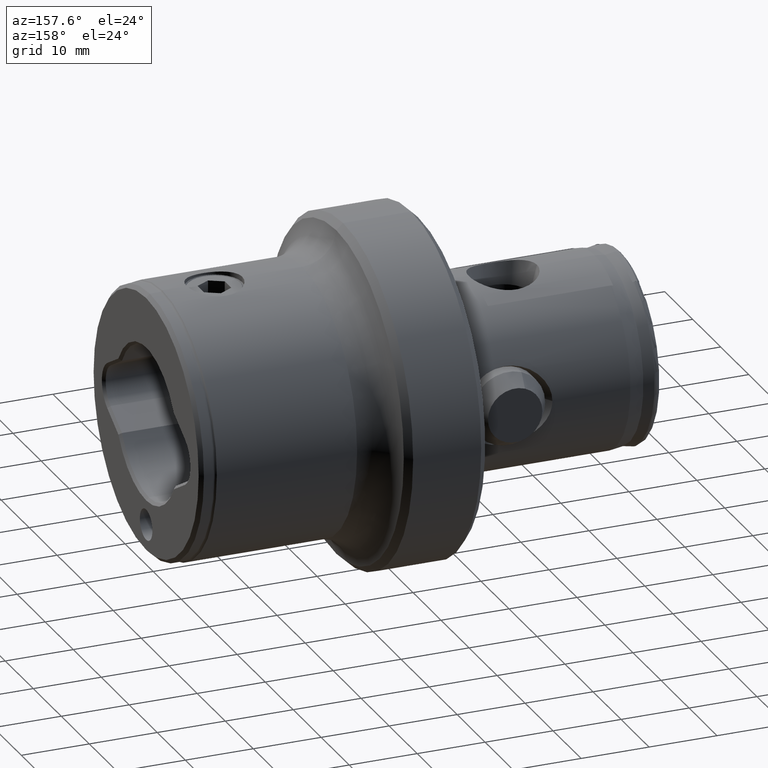
[diagram: clean part render]
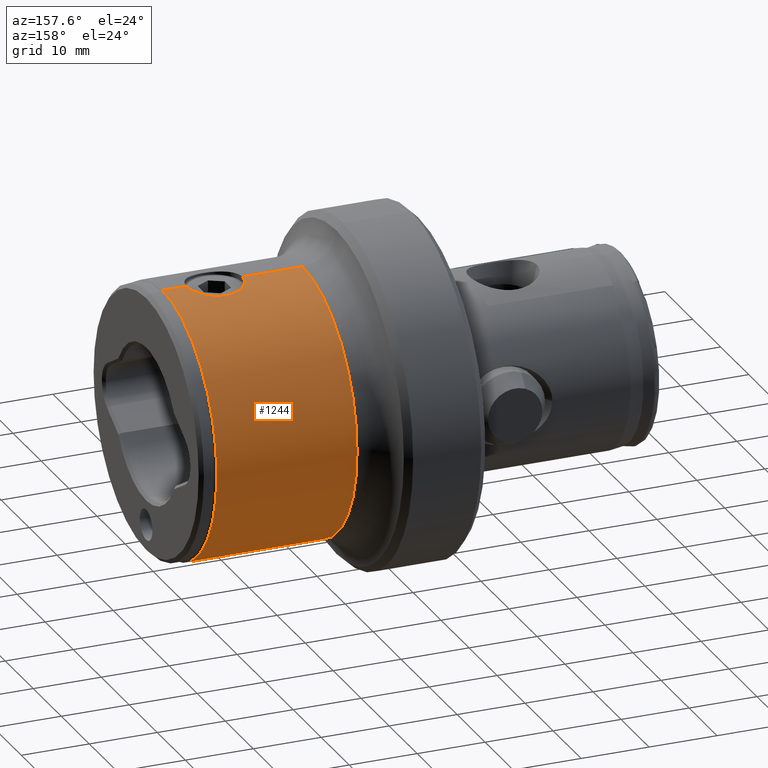
[diagram: same view with one face highlighted and labeled with its STEP entity id]
A machine part, auxiliary view. The second image highlights one B-rep face of the part: STEP entity #1244.
In plain terms, the highlighted cylindrical surface (partial cylindrical patch) has radius 19.5 mm, axis along (-1, -0, -0).
Its self-contained STEP definition (entity closure, byte-faithful):
#48 = CARTESIAN_POINT ( 'NONE',  ( 62.65883272012624900, 3.089202787936411900, 19.25468922842919300 ) ) ;
#89 = CARTESIAN_POINT ( 'NONE',  ( 69.99999999999998600, 0.0000000000000000000, 19.50000000000000000 ) ) ;
#101 = VERTEX_POINT ( 'NONE', #3787 ) ;
#108 = DIRECTION ( 'NONE',  ( -1.000000000000000000, -0.0000000000000000000, -0.0000000000000000000 ) ) ;
#185 = DIRECTION ( 'NONE',  ( 1.000000000000000000, 0.0000000000000000000, 0.0000000000000000000 ) ) ;
#193 = DIRECTION ( 'NONE',  ( -1.000000000000000000, -0.0000000000000000000, -0.0000000000000000000 ) ) ;
#366 = DIRECTION ( 'NONE',  ( -1.000000000000000000, -0.0000000000000000000, -0.0000000000000000000 ) ) ;
#450 = CARTESIAN_POINT ( 'NONE',  ( 58.62470393943633000, 3.889242478390371200, 19.10850376499960000 ) ) ;
#472 = CARTESIAN_POINT ( 'NONE',  ( 63.20607366394212800, 2.506163181675748100, 19.33960036030278600 ) ) ;
#576 = CARTESIAN_POINT ( 'NONE',  ( 46.99999999999999300, 0.0000000000000000000, 19.50000000000000000 ) ) ;
#592 = VERTEX_POINT ( 'NONE', #2624 ) ;
#663 = ORIENTED_EDGE ( 'NONE', *, *, #1706, .T. ) ;
#751 = LINE ( 'NONE', #4888, #1894 ) ;
#773 = CARTESIAN_POINT ( 'NONE',  ( 69.99999999999998600, 0.0000000000000000000, 0.0000000000000000000 ) ) ;
#846 = AXIS2_PLACEMENT_3D ( 'NONE', #2732, #185, #3154 ) ;
#867 = CARTESIAN_POINT ( 'NONE',  ( 59.40825263077861300, 4.072837913140880900, 19.06999901593888300 ) ) ;
#892 = CARTESIAN_POINT ( 'NONE',  ( 63.63257333203403500, 1.822078081037247400, 19.41626160705733300 ) ) ;
#1175 = CARTESIAN_POINT ( 'NONE',  ( 69.99999999999998600, 2.388061258337338900E-015, -19.50000000000000000 ) ) ;
#1244 = ADVANCED_FACE ( 'NONE', ( #5318 ), #2777, .T. ) ;
#1253 = CARTESIAN_POINT ( 'NONE',  ( 55.98180420751569400, 1.066221518107491700, 19.47264488405741600 ) ) ;
#1303 = CARTESIAN_POINT ( 'NONE',  ( 60.21872880211226700, 4.100125537003166600, 19.06407539319491200 ) ) ;
#1322 = CARTESIAN_POINT ( 'NONE',  ( 63.91745484172246700, 1.068671708260932300, 19.47249388388283700 ) ) ;
#1445 = ORIENTED_EDGE ( 'NONE', *, *, #3066, .T. ) ;
#1451 = VERTEX_POINT ( 'NONE', #1769 ) ;
#1644 = ORIENTED_EDGE ( 'NONE', *, *, #4796, .F. ) ;
#1673 = CARTESIAN_POINT ( 'NONE',  ( 56.26499609809539500, 1.817176892222178300, 19.41672420750703100 ) ) ;
#1686 = AXIS2_PLACEMENT_3D ( 'NONE', #773, #4975, #3753 ) ;
#1706 = EDGE_CURVE ( 'NONE', #3194, #592, #5383, .T. ) ;
#1716 = CARTESIAN_POINT ( 'NONE',  ( 55.84999999999998000, 8.330781366804599600E-022, 19.50000000000000000 ) ) ;
#1735 = CARTESIAN_POINT ( 'NONE',  ( 61.01103124408879800, 3.969383796158386400, 19.09180018694135600 ) ) ;
#1751 = CARTESIAN_POINT ( 'NONE',  ( 64.05000000000002600, 0.2716420588160343200, 19.50000000000000400 ) ) ;
#1769 = CARTESIAN_POINT ( 'NONE',  ( 67.63431457505075200, 0.0000000000000000000, 19.50000000000000000 ) ) ;
#1821 = LINE ( 'NONE', #89, #3959 ) ;
#1879 = DIRECTION ( 'NONE',  ( -1.000000000000000000, -0.0000000000000000000, -0.0000000000000000000 ) ) ;
#1894 = VECTOR ( 'NONE', #1879, 1000.000000000000000 ) ;
#1952 = ORIENTED_EDGE ( 'NONE', *, *, #5177, .T. ) ;
#1975 = VERTEX_POINT ( 'NONE', #1716 ) ;
#2117 = CARTESIAN_POINT ( 'NONE',  ( 56.69136273160554400, 2.502650868706132000, 19.34004016757368700 ) ) ;
#2170 = CARTESIAN_POINT ( 'NONE',  ( 61.76762428016937900, 3.684841646035481100, 19.14896567468257900 ) ) ;
#2486 = EDGE_CURVE ( 'NONE', #1975, #3683, #1821, .T. ) ;
#2538 = CARTESIAN_POINT ( 'NONE',  ( 57.23816060137090000, 3.086638747966362000, 19.25510873947715500 ) ) ;
#2599 = EDGE_CURVE ( 'NONE', #592, #3683, #3303, .T. ) ;
#2600 = CARTESIAN_POINT ( 'NONE',  ( 62.44946989160749200, 3.261087052161451000, 19.22597762569196100 ) ) ;
#2623 = CARTESIAN_POINT ( 'NONE',  ( 57.89200889041919900, 3.556104273386352600, 19.17359724701416500 ) ) ;
#2624 = CARTESIAN_POINT ( 'NONE',  ( 46.99999999999999300, 2.388061258337338900E-015, -19.50000000000000000 ) ) ;
#2732 = CARTESIAN_POINT ( 'NONE',  ( 46.99999999999999300, 0.0000000000000000000, 0.0000000000000000000 ) ) ;
#2738 = CARTESIAN_POINT ( 'NONE',  ( 67.63431457505075200, 0.0000000000000000000, 0.0000000000000000000 ) ) ;
#2777 = CYLINDRICAL_SURFACE ( 'NONE', #1686, 19.50000000000000000 ) ;
#2949 = ORIENTED_EDGE ( 'NONE', *, *, #2599, .T. ) ;
#2993 = CARTESIAN_POINT ( 'NONE',  ( 58.12705844430848100, 3.682322743648993600, 19.14945488530484100 ) ) ;
#3015 = CARTESIAN_POINT ( 'NONE',  ( 63.03576394513692100, 2.712749425493207000, 19.31132366521952500 ) ) ;
#3066 = EDGE_CURVE ( 'NONE', #1451, #3194, #3107, .T. ) ;
#3107 = CIRCLE ( 'NONE', #4484, 19.50000000000000000 ) ;
#3154 = DIRECTION ( 'NONE',  ( 0.0000000000000000000, 0.0000000000000000000, 1.000000000000000000 ) ) ;
#3157 = DIRECTION ( 'NONE',  ( 0.0000000000000000000, 0.0000000000000000000, 1.000000000000000000 ) ) ;
#3194 = VERTEX_POINT ( 'NONE', #5239 ) ;
#3303 = CIRCLE ( 'NONE', #846, 19.50000000000000000 ) ;
#3378 = CARTESIAN_POINT ( 'NONE',  ( 55.84999999999998000, 8.330781366804599600E-022, 19.50000000000000000 ) ) ;
#3431 = CARTESIAN_POINT ( 'NONE',  ( 58.88384900634643100, 3.967974412405856000, 19.09209391861249100 ) ) ;
#3453 = CARTESIAN_POINT ( 'NONE',  ( 63.50655283232790500, 2.057620360772307600, 19.39245199659770300 ) ) ;
#3683 = VERTEX_POINT ( 'NONE', #576 ) ;
#3753 = DIRECTION ( 'NONE',  ( 0.0000000000000000000, 0.0000000000000000000, 1.000000000000000000 ) ) ;
#3779 = B_SPLINE_CURVE_WITH_KNOTS ( 'NONE', 3,
 ( #3378, #4668, #3810, #1253, #4250, #1673, #4684, #2117, #5107, #2538, #5540, #2623, #2993, #450, #3431, #867, #3859, #1303, #4298, #1735, #4735, #2170, #5157, #2600, #48, #3015, #472, #3453, #892, #3877, #1322, #4327, #1751, #4756 ),
 .UNSPECIFIED., .F., .F.,
 ( 4, 2, 2, 2, 2, 2, 2, 2, 2, 2, 2, 2, 2, 2, 2, 2, 4 ),
 ( 0.01285440415728775000, 0.01365759472102050800, 0.01446078528475326500, 0.01526397584848602200, 0.01606716641221878100, 0.01687035697595153800, 0.01767354753968429200, 0.01847673810341704900, 0.01927992866714980600, 0.02008311923088256300, 0.02088630979461532000, 0.02168950035834807700, 0.02249269092208083100, 0.02329588148581358800, 0.02409907204954634500, 0.02490226261327910300, 0.02570545317701186300 ),
 .UNSPECIFIED. ) ;
#3787 = CARTESIAN_POINT ( 'NONE',  ( 64.04999999999999700, 2.018368190966303400E-015, 19.50000000000000000 ) ) ;
#3810 = CARTESIAN_POINT ( 'NONE',  ( 55.87600710443077600, 0.5347785149170512000, 19.49447970699055000 ) ) ;
#3859 = CARTESIAN_POINT ( 'NONE',  ( 59.67745411251787900, 4.099873574573586600, 19.06412958120875700 ) ) ;
#3877 = CARTESIAN_POINT ( 'NONE',  ( 63.83781428936634200, 1.328990192064371900, 19.45623212229134300 ) ) ;
#3959 = VECTOR ( 'NONE', #108, 1000.000000000000000 ) ;
#4205 = ORIENTED_EDGE ( 'NONE', *, *, #2486, .F. ) ;
#4250 = CARTESIAN_POINT ( 'NONE',  ( 56.06032631130585700, 1.323564962576114300, 19.45660521771094400 ) ) ;
#4298 = CARTESIAN_POINT ( 'NONE',  ( 60.48539333265136300, 4.073714398615821100, 19.06981103990831600 ) ) ;
#4327 = CARTESIAN_POINT ( 'NONE',  ( 64.02326684601334300, 0.5396798516833748400, 19.49432796829833900 ) ) ;
#4484 = AXIS2_PLACEMENT_3D ( 'NONE', #2738, #193, #3157 ) ;
#4668 = CARTESIAN_POINT ( 'NONE',  ( 55.84999999999997300, 0.2679336955998233800, 19.50000000000000000 ) ) ;
#4684 = CARTESIAN_POINT ( 'NONE',  ( 56.39301943229541100, 2.056664157945245800, 19.39253845156488900 ) ) ;
#4735 = CARTESIAN_POINT ( 'NONE',  ( 61.27251019756942400, 3.890087757049144100, 19.10832702276641700 ) ) ;
#4756 = CARTESIAN_POINT ( 'NONE',  ( 64.04999999999999700, 2.018368190966303400E-015, 19.50000000000000000 ) ) ;
#4796 = EDGE_CURVE ( 'NONE', #1451, #101, #751, .T. ) ;
#4888 = CARTESIAN_POINT ( 'NONE',  ( 69.99999999999998600, 0.0000000000000000000, 19.50000000000000000 ) ) ;
#4975 = DIRECTION ( 'NONE',  ( -1.000000000000000000, -0.0000000000000000000, -0.0000000000000000000 ) ) ;
#5062 = EDGE_LOOP ( 'NONE', ( #1445, #663, #2949, #4205, #1952, #1644 ) ) ;
#5107 = CARTESIAN_POINT ( 'NONE',  ( 56.86044424509105300, 2.708515630693948000, 19.31192622209973900 ) ) ;
#5157 = CARTESIAN_POINT ( 'NONE',  ( 62.00299688711846400, 3.559106950108323900, 19.17304519743992200 ) ) ;
#5177 = EDGE_CURVE ( 'NONE', #1975, #101, #3779, .T. ) ;
#5239 = CARTESIAN_POINT ( 'NONE',  ( 67.63431457505075200, 2.388061258337338900E-015, -19.50000000000000000 ) ) ;
#5245 = VECTOR ( 'NONE', #366, 1000.000000000000000 ) ;
#5318 = FACE_OUTER_BOUND ( 'NONE', #5062, .T. ) ;
#5383 = LINE ( 'NONE', #1175, #5245 ) ;
#5540 = CARTESIAN_POINT ( 'NONE',  ( 57.44843460934089300, 3.259352022498780900, 19.22626675637626500 ) ) ;